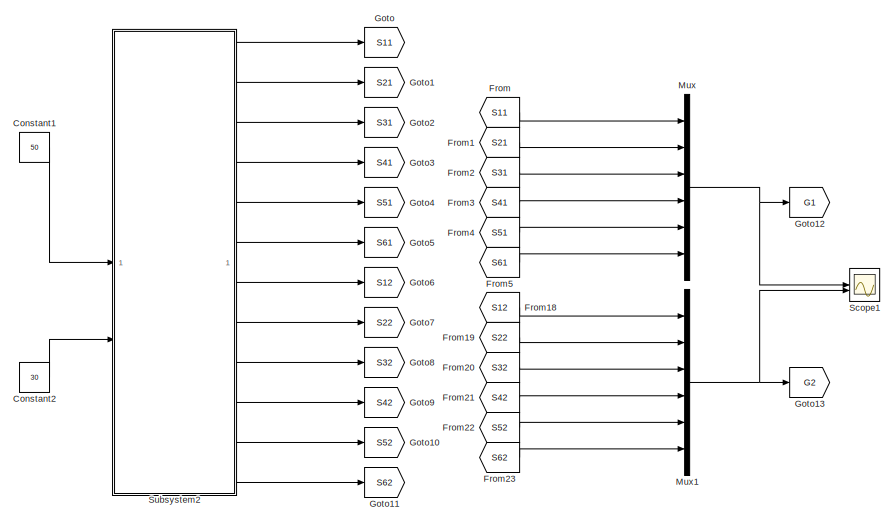
[diagram: root canvas - part 1/2, left side, full height]
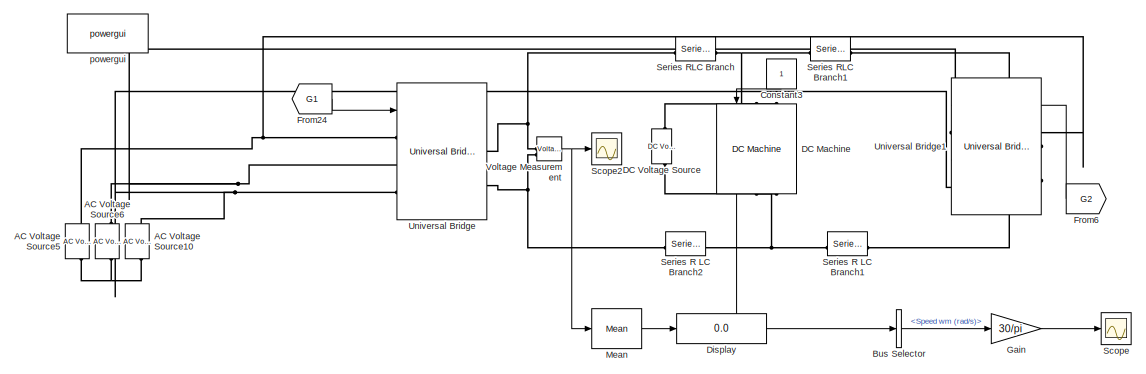
[diagram: root canvas - part 2/2, middle right region]
MODEL slx_a7783e5cdf9d
KIND model
CONFIG AbsTol = auto
CONFIG EnableMultiTasking = off
CONFIG FixedStep = auto
CONFIG MaxStep = auto
CONFIG MinStep = auto
CONFIG RelTol = 1e-3
CONFIG SampleTimeConstraint = Unconstrained
CONFIG SolverName = VariableStepAuto
CONFIG StartTime = 0.0
CONFIG StopTime = 4
BLOCK [Reference] AC Voltage Source10  REF=spsACVoltageSourceLib/AC Voltage Source
  SourceBlock = spsACVoltageSourceLib/AC Voltage Source
  SourceType = AC Voltage Source
BLOCK [Reference] AC Voltage Source5  REF=spsACVoltageSourceLib/AC Voltage Source
  SourceBlock = spsACVoltageSourceLib/AC Voltage Source
  SourceType = AC Voltage Source
BLOCK [Reference] AC Voltage Source6  REF=spsACVoltageSourceLib/AC Voltage Source
  SourceBlock = spsACVoltageSourceLib/AC Voltage Source
  SourceType = AC Voltage Source
BLOCK [BusSelector] Bus Selector
  OutputSignals = Speed wm (rad/s)
BLOCK [Constant] Constant1
  Value = 50
BLOCK [Constant] Constant2
  Value = 30
BLOCK [Constant] Constant3
  NameLocation = left
BLOCK [Reference] DC Machine  REF=spsDCMachineLib/DC Machine
  LibrarySourceBlock = sps_lib/Electrical Machines/DC Machine
  NameLocation = left
  SourceBlock = spsDCMachineLib/DC Machine
  SourceType = DC machine
BLOCK [Reference] DC Voltage Source  REF=spsDCVoltageSourceLib/DC Voltage Source
  LibrarySourceBlock = sps_lib/Sources/DC Voltage Source
  SourceBlock = spsDCVoltageSourceLib/DC Voltage Source
  SourceType = DC Voltage Source
BLOCK [Display] Display
  Decimation = 1
BLOCK [From] From
  GotoTag = S11
BLOCK [From] From1
  GotoTag = S21
BLOCK [From] From18
  GotoTag = S12
BLOCK [From] From19
  GotoTag = S22
BLOCK [From] From2
  GotoTag = S31
BLOCK [From] From20
  GotoTag = S32
BLOCK [From] From21
  GotoTag = S42
BLOCK [From] From22
  GotoTag = S52
BLOCK [From] From23
  GotoTag = S62
BLOCK [From] From24
  GotoTag = G1
BLOCK [From] From3
  GotoTag = S41
BLOCK [From] From4
  GotoTag = S51
BLOCK [From] From5
  GotoTag = S61
BLOCK [From] From6
  GotoTag = G2
  NameLocation = top
BLOCK [Gain] Gain
  Gain = 30/pi
BLOCK [Goto] Goto
  GotoTag = S11
BLOCK [Goto] Goto1
  GotoTag = S21
BLOCK [Goto] Goto10
  GotoTag = S52
BLOCK [Goto] Goto11
  GotoTag = S62
BLOCK [Goto] Goto12
  GotoTag = G1
BLOCK [Goto] Goto13
  GotoTag = G2
BLOCK [Goto] Goto2
  GotoTag = S31
BLOCK [Goto] Goto3
  GotoTag = S41
BLOCK [Goto] Goto4
  GotoTag = S51
BLOCK [Goto] Goto5
  GotoTag = S61
BLOCK [Goto] Goto6
  GotoTag = S12
BLOCK [Goto] Goto7
  GotoTag = S22
BLOCK [Goto] Goto8
  GotoTag = S32
BLOCK [Goto] Goto9
  GotoTag = S42
BLOCK [Reference] Mean  REF=spsMeanLib/Mean
  LibrarySourceBlock = sps_lib/Sensors and Measurements/Mean
  SourceBlock = spsMeanLib/Mean
  SourceType = Mean
BLOCK [Mux] Mux
  DisplayOption = bar
  Inputs = 6
BLOCK [Mux] Mux1
  DisplayOption = bar
  Inputs = 6
BLOCK [Scope] Scope
  Floating = off
  NumInputPorts = 1
  ScopeSpecificationString = Simulink.scopes.TimeScopeBlockCfg('CurrentConfiguration', extmgr.ConfigurationSet(extmgr.Configuration('Core','General UI',true),extmgr.Configuration('Core','Source UI',true),extmgr.Configuration('Sources','WiredSimulink',true),extmgr.Configuration('Visuals','Time Domain',true,'SerializedDisplays',{struct('MinYLimReal','-193.39586','MaxYLimReal','1754.99656','YLabelReal','','MinYLimMag',' 0.00000'...<+1421ch>
BLOCK [Scope] Scope1
  Floating = off
  NumInputPorts = 2
  ScopeSpecificationString = Simulink.scopes.TimeScopeBlockCfg('CurrentConfiguration', extmgr.ConfigurationSet(extmgr.Configuration('Core','General UI',true),extmgr.Configuration('Core','Source UI',true),extmgr.Configuration('Sources','WiredSimulink',true,'DataLoggingVariableName','ScopeData1'),extmgr.Configuration('Visuals','Time Domain',true,'SerializedDisplays',{struct('MinYLimReal','-0.125','MaxYLimReal','1.125','YLabelRe...<+2181ch>
BLOCK [Scope] Scope2
  Floating = off
  NumInputPorts = 1
  ScopeSpecificationString = Simulink.scopes.TimeScopeBlockCfg('CurrentConfiguration', extmgr.ConfigurationSet(extmgr.Configuration('Core','General UI',true),extmgr.Configuration('Core','Source UI',true),extmgr.Configuration('Sources','WiredSimulink',true,'DataLoggingVariableName','ScopeData2'),extmgr.Configuration('Visuals','Time Domain',true,'SerializedDisplays',{struct('MinYLimReal','262.38978','MaxYLimReal','405.62277','Y...<+1471ch>
BLOCK [Reference] Series R LC Branch1  REF=spsSeriesRLCBranchLib/Series RLC Branch
  LibrarySourceBlock = sps_lib/Passives/Series RLC Branch
  SourceBlock = spsSeriesRLCBranchLib/Series RLC Branch
  SourceType = Series RLC Branch
BLOCK [Reference] Series R LC Branch2  REF=spsSeriesRLCBranchLib/Series RLC Branch
  LibrarySourceBlock = sps_lib/Passives/Series RLC Branch
  SourceBlock = spsSeriesRLCBranchLib/Series RLC Branch
  SourceType = Series RLC Branch
BLOCK [Reference] Series RLC Branch  REF=spsSeriesRLCBranchLib/Series RLC Branch
  LibrarySourceBlock = sps_lib/Passives/Series RLC Branch
  SourceBlock = spsSeriesRLCBranchLib/Series RLC Branch
  SourceType = Series RLC Branch
BLOCK [Reference] Series RLC Branch1  REF=spsSeriesRLCBranchLib/Series RLC Branch
  LibrarySourceBlock = sps_lib/Passives/Series RLC Branch
  SourceBlock = spsSeriesRLCBranchLib/Series RLC Branch
  SourceType = Series RLC Branch
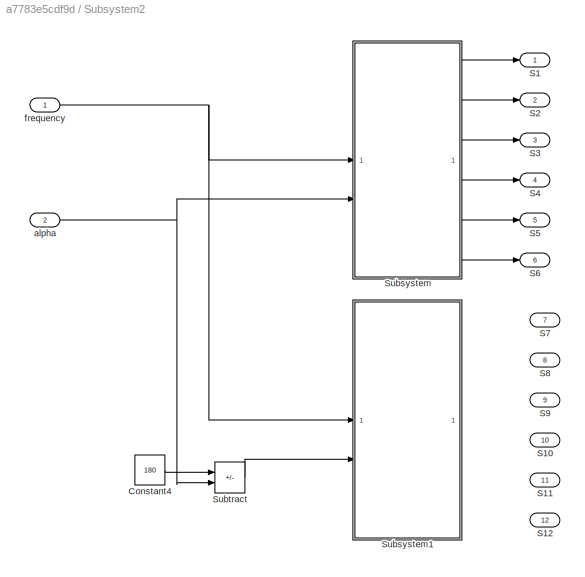
BLOCK [SubSystem] Subsystem2
BLOCK [Constant] Subsystem2/Constant4
  Value = 180
BLOCK [Outport] Subsystem2/S1
BLOCK [Outport] Subsystem2/S10
  Port = 10
BLOCK [Outport] Subsystem2/S11
  Port = 11
BLOCK [Outport] Subsystem2/S12
  Port = 12
BLOCK [Outport] Subsystem2/S2
  Port = 2
BLOCK [Outport] Subsystem2/S3
  Port = 3
BLOCK [Outport] Subsystem2/S4
  Port = 4
BLOCK [Outport] Subsystem2/S5
  Port = 5
BLOCK [Outport] Subsystem2/S6
  Port = 6
BLOCK [Outport] Subsystem2/S7
  Port = 7
BLOCK [Outport] Subsystem2/S8
  Port = 8
BLOCK [Outport] Subsystem2/S9
  Port = 9
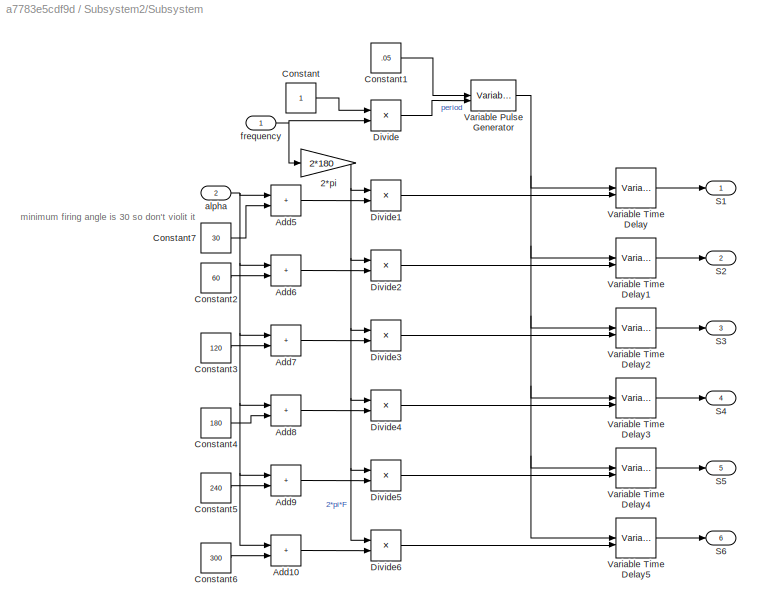
BLOCK [SubSystem] Subsystem2/Subsystem
BLOCK [Gain] Subsystem2/Subsystem/2*pi
  Gain = 2*180
BLOCK [Sum] Subsystem2/Subsystem/Add10
  IconShape = rectangular
BLOCK [Sum] Subsystem2/Subsystem/Add5
  IconShape = rectangular
BLOCK [Sum] Subsystem2/Subsystem/Add6
  IconShape = rectangular
BLOCK [Sum] Subsystem2/Subsystem/Add7
  IconShape = rectangular
BLOCK [Sum] Subsystem2/Subsystem/Add8
  IconShape = rectangular
BLOCK [Sum] Subsystem2/Subsystem/Add9
  IconShape = rectangular
BLOCK [Constant] Subsystem2/Subsystem/Constant
BLOCK [Constant] Subsystem2/Subsystem/Constant1
  Value = .05
BLOCK [Constant] Subsystem2/Subsystem/Constant2
  Value = 60
BLOCK [Constant] Subsystem2/Subsystem/Constant3
  Value = 120
BLOCK [Constant] Subsystem2/Subsystem/Constant4
  Value = 180
BLOCK [Constant] Subsystem2/Subsystem/Constant5
  Value = 240
BLOCK [Constant] Subsystem2/Subsystem/Constant6
  Value = 300
BLOCK [Constant] Subsystem2/Subsystem/Constant7
  Value = 30
BLOCK [Product] Subsystem2/Subsystem/Divide
  Inputs = */
BLOCK [Product] Subsystem2/Subsystem/Divide1
  Inputs = /*
BLOCK [Product] Subsystem2/Subsystem/Divide2
  Inputs = /*
BLOCK [Product] Subsystem2/Subsystem/Divide3
  Inputs = /*
BLOCK [Product] Subsystem2/Subsystem/Divide4
  Inputs = /*
BLOCK [Product] Subsystem2/Subsystem/Divide5
  Inputs = /*
BLOCK [Product] Subsystem2/Subsystem/Divide6
  Inputs = /*
BLOCK [Outport] Subsystem2/Subsystem/S1
BLOCK [Outport] Subsystem2/Subsystem/S2
  Port = 2
BLOCK [Outport] Subsystem2/Subsystem/S3
  Port = 3
BLOCK [Outport] Subsystem2/Subsystem/S4
  Port = 4
BLOCK [Outport] Subsystem2/Subsystem/S5
  Port = 5
BLOCK [Outport] Subsystem2/Subsystem/S6
  Port = 6
BLOCK [VariablePulseGenerator] Subsystem2/Subsystem/Variable Pulse Generator
  SampleTime = 0.1
BLOCK [VariableTransportDelay] Subsystem2/Subsystem/Variable Time Delay
  MaximumDelay = 10
BLOCK [VariableTransportDelay] Subsystem2/Subsystem/Variable Time Delay1
  MaximumDelay = 10
BLOCK [VariableTransportDelay] Subsystem2/Subsystem/Variable Time Delay2
  MaximumDelay = 10
BLOCK [VariableTransportDelay] Subsystem2/Subsystem/Variable Time Delay3
  MaximumDelay = 10
BLOCK [VariableTransportDelay] Subsystem2/Subsystem/Variable Time Delay4
  MaximumDelay = 10
BLOCK [VariableTransportDelay] Subsystem2/Subsystem/Variable Time Delay5
  MaximumDelay = 10
BLOCK [Inport] Subsystem2/Subsystem/alpha
  Port = 2
BLOCK [Inport] Subsystem2/Subsystem/frequency
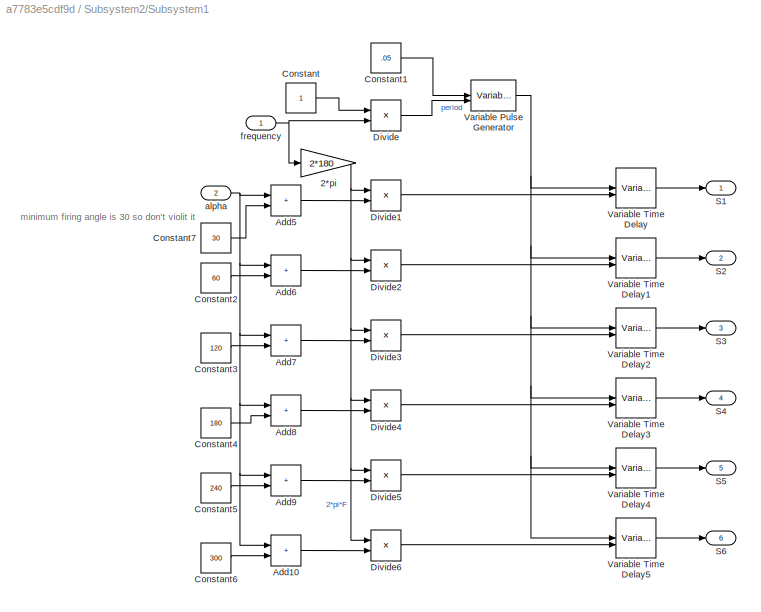
BLOCK [SubSystem] Subsystem2/Subsystem1
BLOCK [Gain] Subsystem2/Subsystem1/2*pi
  Gain = 2*180
BLOCK [Sum] Subsystem2/Subsystem1/Add10
  IconShape = rectangular
BLOCK [Sum] Subsystem2/Subsystem1/Add5
  IconShape = rectangular
BLOCK [Sum] Subsystem2/Subsystem1/Add6
  IconShape = rectangular
BLOCK [Sum] Subsystem2/Subsystem1/Add7
  IconShape = rectangular
BLOCK [Sum] Subsystem2/Subsystem1/Add8
  IconShape = rectangular
BLOCK [Sum] Subsystem2/Subsystem1/Add9
  IconShape = rectangular
BLOCK [Constant] Subsystem2/Subsystem1/Constant
BLOCK [Constant] Subsystem2/Subsystem1/Constant1
  Value = .05
BLOCK [Constant] Subsystem2/Subsystem1/Constant2
  Value = 60
BLOCK [Constant] Subsystem2/Subsystem1/Constant3
  Value = 120
BLOCK [Constant] Subsystem2/Subsystem1/Constant4
  Value = 180
BLOCK [Constant] Subsystem2/Subsystem1/Constant5
  Value = 240
BLOCK [Constant] Subsystem2/Subsystem1/Constant6
  Value = 300
BLOCK [Constant] Subsystem2/Subsystem1/Constant7
  Value = 30
BLOCK [Product] Subsystem2/Subsystem1/Divide
  Inputs = */
BLOCK [Product] Subsystem2/Subsystem1/Divide1
  Inputs = /*
BLOCK [Product] Subsystem2/Subsystem1/Divide2
  Inputs = /*
BLOCK [Product] Subsystem2/Subsystem1/Divide3
  Inputs = /*
BLOCK [Product] Subsystem2/Subsystem1/Divide4
  Inputs = /*
BLOCK [Product] Subsystem2/Subsystem1/Divide5
  Inputs = /*
BLOCK [Product] Subsystem2/Subsystem1/Divide6
  Inputs = /*
BLOCK [Outport] Subsystem2/Subsystem1/S1
BLOCK [Outport] Subsystem2/Subsystem1/S2
  Port = 2
BLOCK [Outport] Subsystem2/Subsystem1/S3
  Port = 3
BLOCK [Outport] Subsystem2/Subsystem1/S4
  Port = 4
BLOCK [Outport] Subsystem2/Subsystem1/S5
  Port = 5
BLOCK [Outport] Subsystem2/Subsystem1/S6
  Port = 6
BLOCK [VariablePulseGenerator] Subsystem2/Subsystem1/Variable Pulse Generator
  SampleTime = 0.1
BLOCK [VariableTransportDelay] Subsystem2/Subsystem1/Variable Time Delay
  MaximumDelay = 10
BLOCK [VariableTransportDelay] Subsystem2/Subsystem1/Variable Time Delay1
  MaximumDelay = 10
BLOCK [VariableTransportDelay] Subsystem2/Subsystem1/Variable Time Delay2
  MaximumDelay = 10
BLOCK [VariableTransportDelay] Subsystem2/Subsystem1/Variable Time Delay3
  MaximumDelay = 10
BLOCK [VariableTransportDelay] Subsystem2/Subsystem1/Variable Time Delay4
  MaximumDelay = 10
BLOCK [VariableTransportDelay] Subsystem2/Subsystem1/Variable Time Delay5
  MaximumDelay = 10
BLOCK [Inport] Subsystem2/Subsystem1/alpha
  Port = 2
BLOCK [Inport] Subsystem2/Subsystem1/frequency
BLOCK [Sum] Subsystem2/Subtract
  IconShape = rectangular
  Inputs = +-
BLOCK [Inport] Subsystem2/alpha
  Port = 2
BLOCK [Inport] Subsystem2/frequency
BLOCK [Reference] Universal Bridge  REF=spsUniversalBridgeLib/Universal Bridge
  LibrarySourceBlock = sps_lib/Power Electronics/Universal Bridge
  SourceBlock = spsUniversalBridgeLib/Universal Bridge
  SourceType = Universal Bridge
BLOCK [Reference] Universal Bridge1  REF=spsUniversalBridgeLib/Universal Bridge
  LibrarySourceBlock = sps_lib/Power Electronics/Universal Bridge
  NameLocation = top
  SourceBlock = spsUniversalBridgeLib/Universal Bridge
  SourceType = Universal Bridge
BLOCK [Reference] Voltage Measurement  REF=spsVoltageMeasurementLib/Voltage Measurement
  LibrarySourceBlock = sps_lib/Sensors and Measurements/Voltage Measurement
  SourceBlock = spsVoltageMeasurementLib/Voltage Measurement
  SourceType = Voltage Measurement
  UserDataPersistent = on
BLOCK [Reference] powergui  REF=sps_lib/powergui
  Priority = 1
  SourceBlock = sps_lib/powergui
  SourceType = PSB option menu block
ANNOTATION Subsystem2/Subsystem: minimum firing angle is 30 so don't violit it
ANNOTATION Subsystem2/Subsystem1: minimum firing angle is 30 so don't violit it
LINE Bus Selector:1 -> Gain:1
LINE Constant1:1 -> Subsystem2:1
LINE Constant2:1 -> Subsystem2:2
LINE Constant3:1 -> DC Machine:1
LINE DC Machine:1 -> Bus Selector:1
LINE From18:1 -> Mux1:1
LINE From19:1 -> Mux1:2
LINE From1:1 -> Mux:2
LINE From20:1 -> Mux1:3
LINE From21:1 -> Mux1:4
LINE From22:1 -> Mux1:5
LINE From23:1 -> Mux1:6
LINE From24:1 -> Universal Bridge:1
LINE From2:1 -> Mux:3
LINE From3:1 -> Mux:4
LINE From4:1 -> Mux:5
LINE From5:1 -> Mux:6
LINE From6:1 -> Universal Bridge1:1
LINE From:1 -> Mux:1
LINE Gain:1 -> Scope:1
LINE Mean:1 -> Display:1
NET Mux1:1 -> Goto13:1, Scope1:2
NET Mux:1 -> Goto12:1, Scope1:1
LINE Subsystem2/Constant4:1 -> Subsystem2/Subtract:1
NET Subsystem2/Subsystem/2*pi:1 -> Subsystem2/Subsystem/Divide1:1, Subsystem2/Subsystem/Divide2:1, Subsystem2/Subsystem/Divide3:1, Subsystem2/Subsystem/Divide4:1, Subsystem2/Subsystem/Divide5:1, Subsystem2/Subsystem/Divide6:1
LINE Subsystem2/Subsystem/Add10:1 -> Subsystem2/Subsystem/Divide6:2
LINE Subsystem2/Subsystem/Add5:1 -> Subsystem2/Subsystem/Divide1:2
LINE Subsystem2/Subsystem/Add6:1 -> Subsystem2/Subsystem/Divide2:2
LINE Subsystem2/Subsystem/Add7:1 -> Subsystem2/Subsystem/Divide3:2
LINE Subsystem2/Subsystem/Add8:1 -> Subsystem2/Subsystem/Divide4:2
LINE Subsystem2/Subsystem/Add9:1 -> Subsystem2/Subsystem/Divide5:2
LINE Subsystem2/Subsystem/Constant1:1 -> Subsystem2/Subsystem/Variable Pulse Generator:1
LINE Subsystem2/Subsystem/Constant2:1 -> Subsystem2/Subsystem/Add6:2
LINE Subsystem2/Subsystem/Constant3:1 -> Subsystem2/Subsystem/Add7:2
LINE Subsystem2/Subsystem/Constant4:1 -> Subsystem2/Subsystem/Add8:2
LINE Subsystem2/Subsystem/Constant5:1 -> Subsystem2/Subsystem/Add9:2
LINE Subsystem2/Subsystem/Constant6:1 -> Subsystem2/Subsystem/Add10:2
LINE Subsystem2/Subsystem/Constant7:1 -> Subsystem2/Subsystem/Add5:2
LINE Subsystem2/Subsystem/Constant:1 -> Subsystem2/Subsystem/Divide:1
LINE Subsystem2/Subsystem/Divide1:1 -> Subsystem2/Subsystem/Variable Time Delay:2
LINE Subsystem2/Subsystem/Divide2:1 -> Subsystem2/Subsystem/Variable Time Delay1:2
LINE Subsystem2/Subsystem/Divide3:1 -> Subsystem2/Subsystem/Variable Time Delay2:2
LINE Subsystem2/Subsystem/Divide4:1 -> Subsystem2/Subsystem/Variable Time Delay3:2
LINE Subsystem2/Subsystem/Divide5:1 -> Subsystem2/Subsystem/Variable Time Delay4:2
LINE Subsystem2/Subsystem/Divide6:1 -> Subsystem2/Subsystem/Variable Time Delay5:2
LINE Subsystem2/Subsystem/Divide:1 -> Subsystem2/Subsystem/Variable Pulse Generator:2
NET Subsystem2/Subsystem/Variable Pulse Generator:1 -> Subsystem2/Subsystem/Variable Time Delay1:1, Subsystem2/Subsystem/Variable Time Delay2:1, Subsystem2/Subsystem/Variable Time Delay3:1, Subsystem2/Subsystem/Variable Time Delay4:1, Subsystem2/Subsystem/Variable Time Delay5:1, Subsystem2/Subsystem/Variable Time Delay:1
LINE Subsystem2/Subsystem/Variable Time Delay1:1 -> Subsystem2/Subsystem/S2:1
LINE Subsystem2/Subsystem/Variable Time Delay2:1 -> Subsystem2/Subsystem/S3:1
LINE Subsystem2/Subsystem/Variable Time Delay3:1 -> Subsystem2/Subsystem/S4:1
LINE Subsystem2/Subsystem/Variable Time Delay4:1 -> Subsystem2/Subsystem/S5:1
LINE Subsystem2/Subsystem/Variable Time Delay5:1 -> Subsystem2/Subsystem/S6:1
LINE Subsystem2/Subsystem/Variable Time Delay:1 -> Subsystem2/Subsystem/S1:1
NET Subsystem2/Subsystem/alpha:1 -> Subsystem2/Subsystem/Add10:1, Subsystem2/Subsystem/Add5:1, Subsystem2/Subsystem/Add6:1, Subsystem2/Subsystem/Add7:1, Subsystem2/Subsystem/Add8:1, Subsystem2/Subsystem/Add9:1
NET Subsystem2/Subsystem/frequency:1 -> Subsystem2/Subsystem/2*pi:1, Subsystem2/Subsystem/Divide:2
NET Subsystem2/Subsystem1/2*pi:1 -> Subsystem2/Subsystem1/Divide1:1, Subsystem2/Subsystem1/Divide2:1, Subsystem2/Subsystem1/Divide3:1, Subsystem2/Subsystem1/Divide4:1, Subsystem2/Subsystem1/Divide5:1, Subsystem2/Subsystem1/Divide6:1
LINE Subsystem2/Subsystem1/Add10:1 -> Subsystem2/Subsystem1/Divide6:2
LINE Subsystem2/Subsystem1/Add5:1 -> Subsystem2/Subsystem1/Divide1:2
LINE Subsystem2/Subsystem1/Add6:1 -> Subsystem2/Subsystem1/Divide2:2
LINE Subsystem2/Subsystem1/Add7:1 -> Subsystem2/Subsystem1/Divide3:2
LINE Subsystem2/Subsystem1/Add8:1 -> Subsystem2/Subsystem1/Divide4:2
LINE Subsystem2/Subsystem1/Add9:1 -> Subsystem2/Subsystem1/Divide5:2
LINE Subsystem2/Subsystem1/Constant1:1 -> Subsystem2/Subsystem1/Variable Pulse Generator:1
LINE Subsystem2/Subsystem1/Constant2:1 -> Subsystem2/Subsystem1/Add6:2
LINE Subsystem2/Subsystem1/Constant3:1 -> Subsystem2/Subsystem1/Add7:2
LINE Subsystem2/Subsystem1/Constant4:1 -> Subsystem2/Subsystem1/Add8:2
LINE Subsystem2/Subsystem1/Constant5:1 -> Subsystem2/Subsystem1/Add9:2
LINE Subsystem2/Subsystem1/Constant6:1 -> Subsystem2/Subsystem1/Add10:2
LINE Subsystem2/Subsystem1/Constant7:1 -> Subsystem2/Subsystem1/Add5:2
LINE Subsystem2/Subsystem1/Constant:1 -> Subsystem2/Subsystem1/Divide:1
LINE Subsystem2/Subsystem1/Divide1:1 -> Subsystem2/Subsystem1/Variable Time Delay:2
LINE Subsystem2/Subsystem1/Divide2:1 -> Subsystem2/Subsystem1/Variable Time Delay1:2
LINE Subsystem2/Subsystem1/Divide3:1 -> Subsystem2/Subsystem1/Variable Time Delay2:2
LINE Subsystem2/Subsystem1/Divide4:1 -> Subsystem2/Subsystem1/Variable Time Delay3:2
LINE Subsystem2/Subsystem1/Divide5:1 -> Subsystem2/Subsystem1/Variable Time Delay4:2
LINE Subsystem2/Subsystem1/Divide6:1 -> Subsystem2/Subsystem1/Variable Time Delay5:2
LINE Subsystem2/Subsystem1/Divide:1 -> Subsystem2/Subsystem1/Variable Pulse Generator:2
NET Subsystem2/Subsystem1/Variable Pulse Generator:1 -> Subsystem2/Subsystem1/Variable Time Delay1:1, Subsystem2/Subsystem1/Variable Time Delay2:1, Subsystem2/Subsystem1/Variable Time Delay3:1, Subsystem2/Subsystem1/Variable Time Delay4:1, Subsystem2/Subsystem1/Variable Time Delay5:1, Subsystem2/Subsystem1/Variable Time Delay:1
LINE Subsystem2/Subsystem1/Variable Time Delay1:1 -> Subsystem2/Subsystem1/S2:1
LINE Subsystem2/Subsystem1/Variable Time Delay2:1 -> Subsystem2/Subsystem1/S3:1
LINE Subsystem2/Subsystem1/Variable Time Delay3:1 -> Subsystem2/Subsystem1/S4:1
LINE Subsystem2/Subsystem1/Variable Time Delay4:1 -> Subsystem2/Subsystem1/S5:1
LINE Subsystem2/Subsystem1/Variable Time Delay5:1 -> Subsystem2/Subsystem1/S6:1
LINE Subsystem2/Subsystem1/Variable Time Delay:1 -> Subsystem2/Subsystem1/S1:1
NET Subsystem2/Subsystem1/alpha:1 -> Subsystem2/Subsystem1/Add10:1, Subsystem2/Subsystem1/Add5:1, Subsystem2/Subsystem1/Add6:1, Subsystem2/Subsystem1/Add7:1, Subsystem2/Subsystem1/Add8:1, Subsystem2/Subsystem1/Add9:1
NET Subsystem2/Subsystem1/frequency:1 -> Subsystem2/Subsystem1/2*pi:1, Subsystem2/Subsystem1/Divide:2
LINE Subsystem2/Subsystem:1 -> Subsystem2/S1:1
LINE Subsystem2/Subsystem:2 -> Subsystem2/S2:1
LINE Subsystem2/Subsystem:3 -> Subsystem2/S3:1
LINE Subsystem2/Subsystem:4 -> Subsystem2/S4:1
LINE Subsystem2/Subsystem:5 -> Subsystem2/S5:1
LINE Subsystem2/Subsystem:6 -> Subsystem2/S6:1
LINE Subsystem2/Subtract:1 -> Subsystem2/Subsystem1:2
NET Subsystem2/alpha:1 -> Subsystem2/Subsystem:2, Subsystem2/Subtract:2
NET Subsystem2/frequency:1 -> Subsystem2/Subsystem1:1, Subsystem2/Subsystem:1
LINE Subsystem2:1 -> Goto:1
LINE Subsystem2:10 -> Goto9:1
LINE Subsystem2:11 -> Goto10:1
LINE Subsystem2:12 -> Goto11:1
LINE Subsystem2:2 -> Goto1:1
LINE Subsystem2:3 -> Goto2:1
LINE Subsystem2:4 -> Goto3:1
LINE Subsystem2:5 -> Goto4:1
LINE Subsystem2:6 -> Goto5:1
LINE Subsystem2:7 -> Goto6:1
LINE Subsystem2:8 -> Goto7:1
LINE Subsystem2:9 -> Goto8:1
NET Voltage Measurement:1 -> Mean:1, Scope2:1
PNET net1: AC Voltage Source10:LConn1 -- AC Voltage Source5:LConn1 -- AC Voltage Source6:LConn1
PNET net2: AC Voltage Source10:RConn1 -- Universal Bridge1:LConn3 -- Universal Bridge:LConn3
PNET net3: AC Voltage Source5:RConn1 -- Universal Bridge1:LConn1 -- Universal Bridge:LConn1
PNET net4: AC Voltage Source6:RConn1 -- Universal Bridge1:LConn2 -- Universal Bridge:LConn2
PNET net5: DC Machine:LConn1 -- Series RLC Branch1:LConn1 -- Series RLC Branch:RConn1
PLINE DC Machine:LConn2 -- DC Voltage Source:RConn1
PNET net6: DC Machine:RConn1 -- Series R LC Branch1:LConn1 -- Series R LC Branch2:RConn1
PLINE DC Machine:RConn2 -- DC Voltage Source:LConn1
PLINE Series R LC Branch1:RConn1 -- Universal Bridge1:RConn1
PNET net7: Series R LC Branch2:LConn1 -- Universal Bridge:RConn2 -- Voltage Measurement:LConn2
PLINE Series RLC Branch1:RConn1 -- Universal Bridge1:RConn2
PNET net8: Series RLC Branch:LConn1 -- Universal Bridge:RConn1 -- Voltage Measurement:LConn1
note: NET lines group one-source signal fan-out (src -> all destinations, sorted); 1:1 wires keep LINE; PNET lines group multi-terminal physical nets as a canonical sorted terminal list (undirected conserving connections); 2-terminal nets keep the pairwise PLINE form
